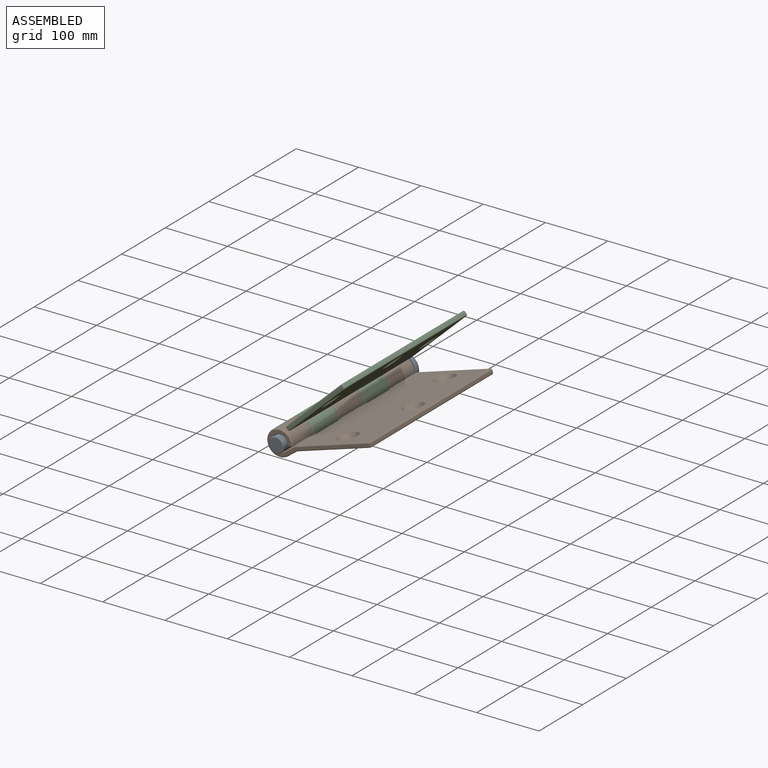
[diagram: assembled view]
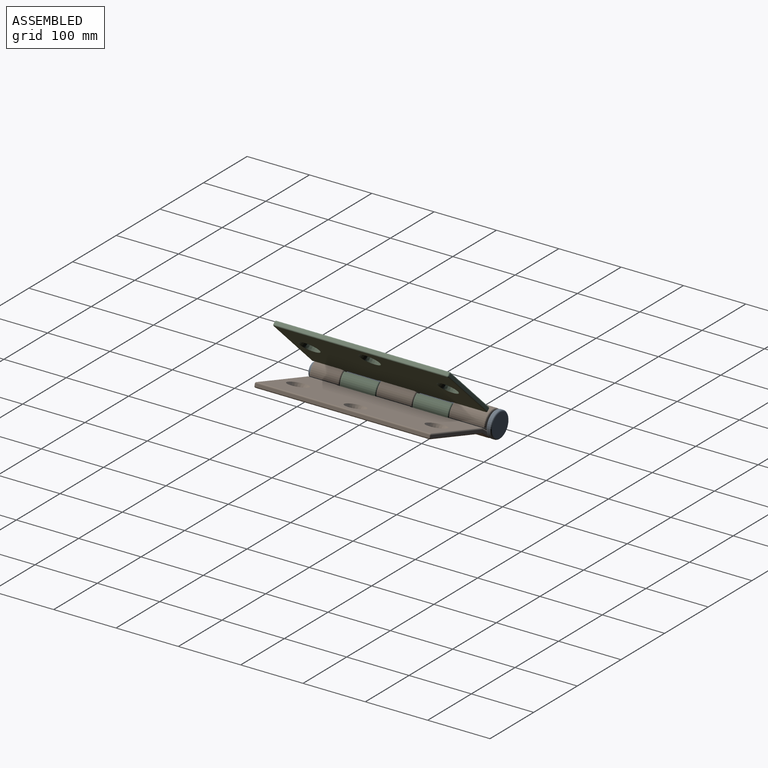
[diagram: assembled view, second angle]
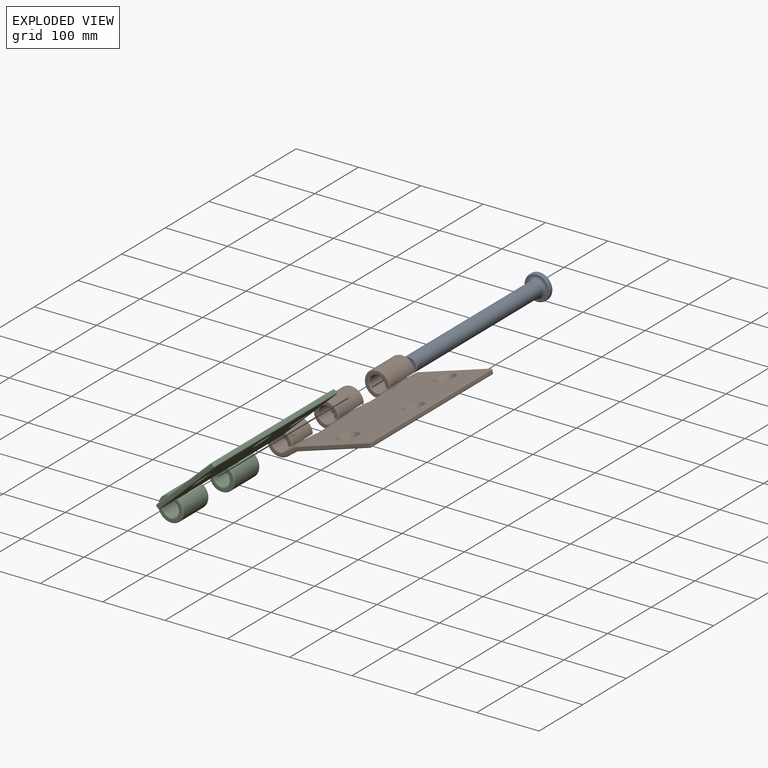
[diagram: exploded view]
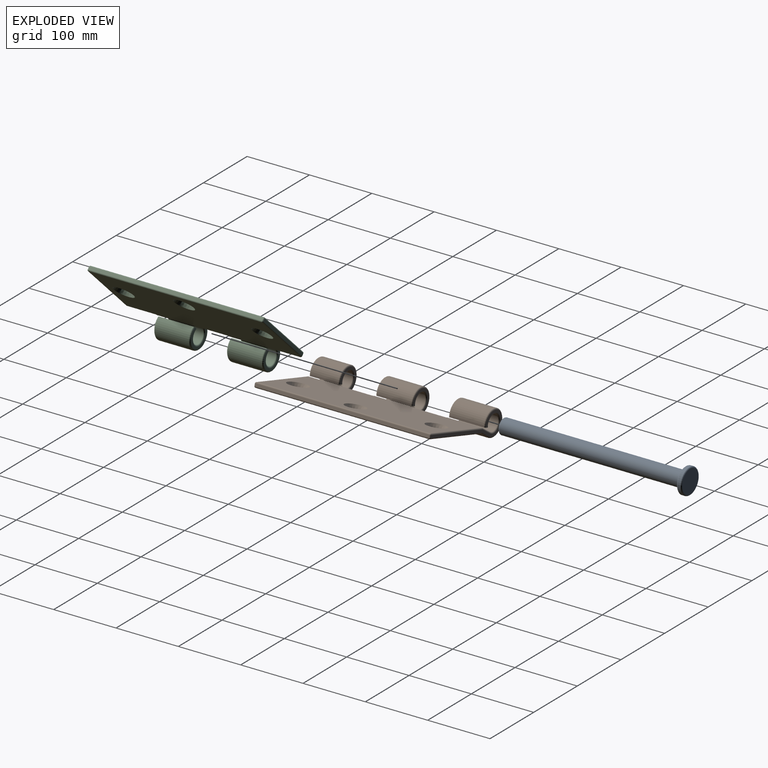
[diagram: exploded view, second angle]
ASSEMBLY  parts=3 mates=2
PART A: 9 faces, bbox 44.4x300x44.4 mm
  f0: cylinder r=12.25mm len=285mm, axis (0,1,0), area 21936.2mm2, adj f7,f8
  f1: plane 20.5x20.5mm, normal (0,-1,0), area 330.1mm2, adj f7
  f2: cylinder r=20.5mm len=41mm, axis (0,-1,0), area 515.2mm2, adj f5,f6
  f3: plane 37x37mm, normal (0,1,0), area 1075.2mm2, adj f6
  f4: plane 37x37mm, normal (0,-1,0), area 140.4mm2, adj f5,f8
  f5: torus R=18.5mm, axis (0,1,0), area 390.3mm2, adj f2,f4
  f6: torus R=18.5mm, axis (0,1,0), area 390.3mm2, adj f2,f3
  f7: torus R=10.25mm, axis (0,1,0), area 227.5mm2, adj f0,f1
  f8: torus R=17.25mm, axis (0,1,0), area 694.2mm2, adj f0,f4
PART B: 86 faces, bbox 172x282.3x44.6 mm
  f0: plane 56.21x20.54mm, normal (-0.32,0,0.95), area 1179.8mm2, adj f4,f12,f39,f40,f41,f52,f53,f54
  f1: plane 45.3x20.54mm, normal (-0.32,0,0.95), area 962.4mm2, adj f5,f12,f34,f35,f36,f70
  f2: plane 54.85x17.59mm, normal (0.34,0,-0.94), area 1016.5mm2, adj f6,f14,f49,f50,f61,f62
  f3: plane 44.63x17.59mm, normal (0.34,0,-0.94), area 829.6mm2, adj f7,f14,f43,f44,f84
  f4: cylinder r=12.5mm len=54.4mm, axis (0,1,0), area 3703.3mm2, adj f0,f8,f37,f51
  f5: cylinder r=12.5mm len=44.4mm, axis (0,1,0), area 3022.6mm2, adj f1,f9,f33,f69
  f6: cylinder r=20.5mm len=54.4mm, axis (0,1,0), area 5913.6mm2, adj f2,f8,f47,f60
  f7: cylinder r=20.5mm len=44.4mm, axis (0,1,0), area 4826.5mm2, adj f3,f9,f42,f82
  f8: plane 58.67x8.7mm, normal (0,0,-1), area 488.4mm2, adj f4,f6,f25,f27,f37,f47,f51,f60
  f9: plane 48.67x8.7mm, normal (0,0,-1), area 404.1mm2, adj f5,f7,f18,f24,f33,f42,f69,f82
  f10: cylinder r=12.5mm len=54.4mm, axis (0,1,0), area 3703.3mm2, adj f11,f17,f55,f71
  f11: plane 55.3x20.54mm, normal (-0.32,0,0.95), area 1179mm2, adj f10,f12,f57,f58,f59,f73
  f12: plane 278x123mm, normal (0,0,1), area 31544mm2, adj f0,f1,f11,f20,f21,f22,f36,f38
  f13: plane 280x4mm, normal (1,0,0), area 1120mm2, adj f18,f74,f79,f83
  f14: plane 278x123.06mm, normal (0,0,-1), area 32599.6mm2, adj f2,f3,f15,f20,f21,f22,f44,f45
  f15: plane 54.63x17.59mm, normal (0.34,0,-0.94), area 1016.4mm2, adj f14,f16,f67,f68,f78
  f16: cylinder r=20.5mm len=54.4mm, axis (0,1,0), area 5913.6mm2, adj f15,f17,f65,f76
  f17: plane 58.67x8.7mm, normal (0,0,-1), area 488.4mm2, adj f10,f16,f19,f28,f55,f65,f71,f76
  f18: plane 168x37mm, normal (0,-1,0), area 929.7mm2, adj f9,f13,f69,f70,f72,f82,f84,f85
  f19: plane 166x37mm, normal (0,1,0), area 921.7mm2, adj f17,f71,f73,f75,f76,f78,f79,f80
  f20: cone r=12mm half-angle=26.6deg, axis (0,0,1), area 786.8mm2, adj f12,f14
  f21: cone r=12mm half-angle=26.6deg, axis (0,0,1), area 786.8mm2, adj f12,f14
  f22: cone r=12mm half-angle=26.6deg, axis (0,0,1), area 786.8mm2, adj f12,f14
  f23: plane 54.4x4mm, normal (-1,0,0), area 217.6mm2, adj f31,f32,f38,f46
  f24: plane 41x37mm, normal (0,1,0), area 422.2mm2, adj f9,f31,f33,f34,f42,f43
  f25: plane 41x37mm, normal (0,-1,0), area 422.2mm2, adj f8,f32,f37,f39,f47,f49
  f26: plane 54.4x4mm, normal (-1,0,0), area 217.6mm2, adj f29,f30,f56,f64
  f27: plane 41x37mm, normal (0,1,0), area 422.2mm2, adj f8,f29,f51,f52,f60,f61
  f28: plane 41x37mm, normal (0,-1,0), area 422.2mm2, adj f17,f30,f55,f57,f65,f67
  f29: cylinder r=2mm len=4.59mm, axis (0,0,1), area 12.3mm2, adj f26,f27,f53,f54,f62,f63
  f30: cylinder r=2mm len=4.59mm, axis (0,0,-1), area 12.3mm2, adj f26,f28,f58,f59,f66,f68
  f31: cylinder r=2mm len=4.59mm, axis (0,0,1), area 12.3mm2, adj f23,f24,f35,f36,f44,f45
  f32: cylinder r=2mm len=4.59mm, axis (0,0,-1), area 12.3mm2, adj f23,f25,f40,f41,f48,f50
  f33: torus R=14.5mm, axis (0,1,0), area 225mm2, adj f5,f9,f24,f34
  f34: cylinder r=2mm len=18.54mm, axis (-0.95,0,-0.32), area 59.3mm2, adj f1,f24,f33,f35
  f35: bspline ~2.75x2.54mm, area 6mm2, adj f1,f31,f34,f36
  f36: torus R=4mm, axis (0,0,-1), area 8.7mm2, adj f1,f12,f31,f35,f38
  f37: torus R=14.5mm, axis (0,1,0), area 225mm2, adj f4,f8,f25,f39
  f38: cylinder r=2mm len=54.4mm, axis (0,1,0), area 170.9mm2, adj f12,f23,f36,f40
  f39: cylinder r=2mm len=18.54mm, axis (0.95,0,0.32), area 59.3mm2, adj f0,f25,f37,f41
  f40: torus R=4mm, axis (0,0,-1), area 8.7mm2, adj f0,f12,f32,f38,f41
  f41: bspline ~3.65x3.11mm, area 6mm2, adj f0,f32,f39,f40
  f42: torus R=18.5mm, axis (0,1,0), area 330.2mm2, adj f7,f9,f24,f43
  f43: cylinder r=2mm len=16.94mm, axis (0.94,0,0.34), area 54.3mm2, adj f3,f24,f42,f44
  f44: bspline ~2.47x2.33mm, area 3.5mm2, adj f3,f14,f31,f43,f45
  f45: torus R=4mm, axis (0,0,1), area 9.2mm2, adj f14,f31,f44,f46
  f46: cylinder r=2mm len=54.4mm, axis (0,1,0), area 170.9mm2, adj f14,f23,f45,f48
  f47: torus R=18.5mm, axis (0,1,0), area 330.2mm2, adj f6,f8,f25,f49
  f48: torus R=4mm, axis (0,0,1), area 9.2mm2, adj f14,f32,f46,f50
  f49: cylinder r=2mm len=16.94mm, axis (-0.94,0,-0.34), area 54.3mm2, adj f2,f25,f47,f50
  f50: bspline ~2.47x2.33mm, area 3.5mm2, adj f2,f14,f32,f48,f49
  f51: torus R=14.5mm, axis (0,1,0), area 225mm2, adj f4,f8,f27,f52
  f52: cylinder r=2mm len=18.54mm, axis (-0.95,0,-0.32), area 59.3mm2, adj f0,f27,f51,f53
  f53: bspline ~2.75x2.54mm, area 6mm2, adj f0,f29,f52,f54
  f54: torus R=4mm, axis (0,0,-1), area 8.7mm2, adj f0,f12,f29,f53,f56
  f55: torus R=14.5mm, axis (0,1,0), area 225mm2, adj f10,f17,f28,f57
  f56: cylinder r=2mm len=54.4mm, axis (0,1,0), area 170.9mm2, adj f12,f26,f54,f58
  f57: cylinder r=2mm len=18.54mm, axis (0.95,0,0.32), area 59.3mm2, adj f11,f28,f55,f59
  f58: torus R=4mm, axis (0,0,-1), area 8.7mm2, adj f11,f12,f30,f56,f59
  f59: bspline ~3.65x3.11mm, area 6mm2, adj f11,f30,f57,f58
  f60: torus R=18.5mm, axis (0,1,0), area 330.2mm2, adj f6,f8,f27,f61
  f61: cylinder r=2mm len=16.94mm, axis (0.94,0,0.34), area 54.3mm2, adj f2,f27,f60,f62
  f62: bspline ~2.47x2.33mm, area 3.5mm2, adj f2,f14,f29,f61,f63
  f63: torus R=4mm, axis (0,0,1), area 9.2mm2, adj f14,f29,f62,f64
  f64: cylinder r=2mm len=54.4mm, axis (0,1,0), area 170.9mm2, adj f14,f26,f63,f66
  f65: torus R=18.5mm, axis (0,1,0), area 330.2mm2, adj f16,f17,f28,f67
  f66: torus R=4mm, axis (0,0,1), area 9.2mm2, adj f14,f30,f64,f68
  f67: cylinder r=2mm len=16.94mm, axis (-0.94,0,-0.34), area 54.3mm2, adj f15,f28,f65,f68
  f68: bspline ~2.47x2.33mm, area 3.5mm2, adj f14,f15,f30,f66,f67
  f69: torus R=14.5mm, axis (0,-1,0), area 225mm2, adj f5,f9,f18,f70
  f70: cylinder r=2mm len=21.18mm, axis (-0.95,0,-0.32), area 67.5mm2, adj f1,f18,f69,f72
  f71: torus R=14.5mm, axis (0,-1,0), area 225mm2, adj f10,f17,f19,f73
  f72: cylinder r=2mm len=125mm, axis (-1,0,0), area 389mm2, adj f12,f18,f70,f74
  f73: cylinder r=2mm len=21.18mm, axis (0.95,0,0.32), area 67.5mm2, adj f11,f19,f71,f75
  f74: cylinder r=2mm len=280mm, axis (0,1,0), area 876.5mm2, adj f12,f13,f72,f77
  f75: cylinder r=2mm len=123mm, axis (1,0,0), area 385.9mm2, adj f12,f19,f73,f77
  f76: torus R=18.5mm, axis (0,-1,0), area 330.2mm2, adj f16,f17,f19,f78
  f77: sphere r=2mm, area 6.3mm2, adj f74,f75,f79
  f78: cylinder r=2mm len=18.59mm, axis (-0.94,0,-0.34), area 59.2mm2, adj f15,f19,f76,f80
  f79: cylinder r=2mm len=4mm, axis (0,0,-1), area 12.6mm2, adj f13,f19,f77,f81
  f80: cylinder r=2mm len=123.35mm, axis (-1,0,0), area 387mm2, adj f14,f19,f78,f81
  f81: sphere r=2mm, area 4mm2, adj f79,f80,f83
  f82: torus R=18.5mm, axis (0,-1,0), area 330.2mm2, adj f7,f9,f18,f84
  f83: cylinder r=2mm len=280mm, axis (0,1,0), area 876.5mm2, adj f13,f14,f81,f85
  f84: cylinder r=2mm len=18.59mm, axis (0.94,0,0.34), area 59.2mm2, adj f3,f18,f82,f85
  f85: cylinder r=2mm len=125.35mm, axis (1,0,0), area 390.1mm2, adj f14,f18,f83,f84
PART C: 85 faces, bbox 172x282.3x44.6 mm
  f0: plane 56.21x20.54mm, normal (0.32,0,0.95), area 1179.8mm2, adj f4,f12,f60,f62,f64,f81,f82,f84
  f1: plane 56.21x20.54mm, normal (0.32,0,0.95), area 1179.8mm2, adj f5,f12,f28,f30,f33,f69,f73,f76
  f2: plane 54.85x17.59mm, normal (-0.34,0,-0.94), area 1016.5mm2, adj f6,f14,f56,f59,f74,f77
  f3: plane 54.85x17.59mm, normal (-0.34,0,-0.94), area 1016.5mm2, adj f7,f14,f27,f29,f66,f68
  f4: cylinder r=12.5mm len=54.4mm, axis (0,1,0), area 3703.3mm2, adj f0,f8,f63,f83
  f5: cylinder r=12.5mm len=54.4mm, axis (0,1,0), area 3703.3mm2, adj f1,f9,f26,f67
  f6: cylinder r=20.5mm len=54.4mm, axis (0,1,0), area 5913.6mm2, adj f2,f8,f53,f70
  f7: cylinder r=20.5mm len=54.4mm, axis (0,1,0), area 5913.6mm2, adj f3,f9,f25,f65
  f8: plane 58.67x8.7mm, normal (0,0,-1), area 488.4mm2, adj f4,f6,f21,f24,f53,f63,f70,f83
  f9: plane 58.67x8.7mm, normal (0,0,-1), area 488.4mm2, adj f5,f7,f19,f22,f25,f26,f65,f67
  f10: plane 121x4mm, normal (0,-1,0), area 484mm2, adj f36,f39,f40,f41
  f11: plane 121x4mm, normal (0,1,0), area 484mm2, adj f46,f49,f50,f51
  f12: plane 278x123mm, normal (0,0,1), area 31455.2mm2, adj f0,f1,f15,f16,f17,f33,f35,f40
  f13: plane 278x4mm, normal (-1,0,0), area 1112mm2, adj f41,f44,f45,f46
  f14: plane 278x123.06mm, normal (0,0,-1), area 32510.8mm2, adj f2,f3,f15,f16,f17,f29,f32,f34
  f15: cone r=12mm half-angle=26.6deg, axis (0,0,1), area 786.8mm2, adj f12,f14
  f16: cone r=12mm half-angle=26.6deg, axis (0,0,1), area 786.8mm2, adj f12,f14
  f17: cone r=12mm half-angle=26.6deg, axis (0,0,1), area 786.8mm2, adj f12,f14
  f18: plane 44.4x4mm, normal (1,0,0), area 177.6mm2, adj f31,f34,f35,f36
  f19: plane 41x37mm, normal (0,-1,0), area 422.2mm2, adj f9,f25,f26,f27,f28,f31
  f20: plane 54.4x4mm, normal (1,0,0), area 217.6mm2, adj f72,f75,f79,f80
  f21: plane 41x37mm, normal (0,-1,0), area 422.2mm2, adj f8,f70,f74,f80,f83,f84
  f22: plane 41x37mm, normal (0,1,0), area 422.2mm2, adj f9,f65,f66,f67,f69,f72
  f23: plane 54.4x4mm, normal (1,0,0), area 217.6mm2, adj f51,f55,f57,f61
  f24: plane 41x37mm, normal (0,1,0), area 422.2mm2, adj f8,f53,f56,f61,f63,f64
  f25: torus R=18.5mm, axis (0,-1,0), area 330.2mm2, adj f7,f9,f19,f27
  f26: torus R=14.5mm, axis (0,-1,0), area 225mm2, adj f5,f9,f19,f28
  f27: cylinder r=2mm len=16.94mm, axis (-0.94,0,0.34), area 54.3mm2, adj f3,f19,f25,f29
  f28: cylinder r=2mm len=18.54mm, axis (0.95,0,-0.32), area 59.3mm2, adj f1,f19,f26,f30
  f29: bspline ~2.47x2.33mm, area 3.5mm2, adj f3,f14,f27,f31,f32
  f30: bspline ~3.65x3.11mm, area 6mm2, adj f1,f28,f31,f33
  f31: cylinder r=2mm len=4.59mm, axis (0,0,-1), area 12.3mm2, adj f18,f19,f29,f30,f32,f33
  f32: torus R=4mm, axis (0,0,1), area 9.2mm2, adj f14,f29,f31,f34
  f33: torus R=4mm, axis (0,0,-1), area 8.7mm2, adj f1,f12,f30,f31,f35
  f34: cylinder r=2mm len=44.4mm, axis (0,-1,0), area 139.5mm2, adj f14,f18,f32,f37
  f35: cylinder r=2mm len=44.4mm, axis (0,-1,0), area 139.5mm2, adj f12,f18,f33,f38
  f36: cylinder r=2mm len=4mm, axis (0,0,1), area 12.6mm2, adj f10,f18,f37,f38
  f37: sphere r=2mm, area 6.3mm2, adj f34,f36,f39
  f38: sphere r=2mm, area 6.3mm2, adj f35,f36,f40
  f39: cylinder r=2mm len=121mm, axis (-1,0,0), area 380.1mm2, adj f10,f14,f37,f42
  f40: cylinder r=2mm len=121mm, axis (1,0,0), area 380.1mm2, adj f10,f12,f38,f43
  f41: cylinder r=2mm len=4mm, axis (0,0,1), area 12.6mm2, adj f10,f13,f42,f43
  f42: sphere r=2mm, area 6.3mm2, adj f39,f41,f44
  f43: sphere r=2mm, area 6.3mm2, adj f40,f41,f45
  f44: cylinder r=2mm len=278mm, axis (0,1,0), area 873.4mm2, adj f13,f14,f42,f47
  f45: cylinder r=2mm len=278mm, axis (0,1,0), area 873.4mm2, adj f12,f13,f43,f48
  f46: cylinder r=2mm len=4mm, axis (0,0,-1), area 12.6mm2, adj f11,f13,f47,f48
  f47: sphere r=2mm, area 6.3mm2, adj f44,f46,f49
  f48: sphere r=2mm, area 6.3mm2, adj f45,f46,f50
  f49: cylinder r=2mm len=121mm, axis (1,0,0), area 380.1mm2, adj f11,f14,f47,f52
  f50: cylinder r=2mm len=121mm, axis (-1,0,0), area 380.1mm2, adj f11,f12,f48,f54
  f51: cylinder r=2mm len=4mm, axis (0,0,-1), area 12.6mm2, adj f11,f23,f52,f54
  f52: sphere r=2mm, area 4mm2, adj f49,f51,f55
  f53: torus R=18.5mm, axis (0,-1,0), area 330.2mm2, adj f6,f8,f24,f56
  f54: sphere r=2mm, area 6.3mm2, adj f50,f51,f57
  f55: cylinder r=2mm len=54.4mm, axis (0,-1,0), area 170.9mm2, adj f14,f23,f52,f58
  f56: cylinder r=2mm len=16.94mm, axis (0.94,0,-0.34), area 54.3mm2, adj f2,f24,f53,f59
  f57: cylinder r=2mm len=54.4mm, axis (0,1,0), area 170.9mm2, adj f12,f23,f54,f60
  f58: torus R=4mm, axis (0,0,1), area 9.2mm2, adj f14,f55,f59,f61
  f59: bspline ~2.47x2.33mm, area 3.5mm2, adj f2,f14,f56,f58,f61
  f60: torus R=4mm, axis (0,0,-1), area 8.7mm2, adj f0,f12,f57,f61,f62
  f61: cylinder r=2mm len=4.59mm, axis (0,0,1), area 12.3mm2, adj f23,f24,f58,f59,f60,f62
  f62: bspline ~3.65x3.11mm, area 6mm2, adj f0,f60,f61,f64
  f63: torus R=14.5mm, axis (0,-1,0), area 225mm2, adj f4,f8,f24,f64
  f64: cylinder r=2mm len=18.54mm, axis (-0.95,0,0.32), area 59.3mm2, adj f0,f24,f62,f63
  f65: torus R=18.5mm, axis (0,-1,0), area 330.2mm2, adj f7,f9,f22,f66
  f66: cylinder r=2mm len=16.94mm, axis (0.94,0,-0.34), area 54.3mm2, adj f3,f22,f65,f68
  f67: torus R=14.5mm, axis (0,-1,0), area 225mm2, adj f5,f9,f22,f69
  f68: bspline ~2.47x2.33mm, area 3.5mm2, adj f3,f14,f66,f71,f72
  f69: cylinder r=2mm len=18.54mm, axis (-0.95,0,0.32), area 59.3mm2, adj f1,f22,f67,f73
  f70: torus R=18.5mm, axis (0,-1,0), area 330.2mm2, adj f6,f8,f21,f74
  f71: torus R=4mm, axis (0,0,1), area 9.2mm2, adj f14,f68,f72,f75
  f72: cylinder r=2mm len=4.59mm, axis (0,0,1), area 12.3mm2, adj f20,f22,f68,f71,f73,f76
  f73: bspline ~2.75x2.54mm, area 6mm2, adj f1,f69,f72,f76
  f74: cylinder r=2mm len=16.94mm, axis (-0.94,0,0.34), area 54.3mm2, adj f2,f21,f70,f77
  f75: cylinder r=2mm len=54.4mm, axis (0,-1,0), area 170.9mm2, adj f14,f20,f71,f78
  f76: torus R=4mm, axis (0,0,-1), area 8.7mm2, adj f1,f12,f72,f73,f79
  f77: bspline ~2.47x2.33mm, area 3.5mm2, adj f2,f14,f74,f78,f80
  f78: torus R=4mm, axis (0,0,1), area 9.2mm2, adj f14,f75,f77,f80
  f79: cylinder r=2mm len=54.4mm, axis (0,-1,0), area 170.9mm2, adj f12,f20,f76,f81
  f80: cylinder r=2mm len=4.59mm, axis (0,0,-1), area 12.3mm2, adj f20,f21,f77,f78,f81,f82
  f81: torus R=4mm, axis (0,0,-1), area 8.7mm2, adj f0,f12,f79,f80,f82
  f82: bspline ~3.65x3.11mm, area 6mm2, adj f0,f80,f81,f84
  f83: torus R=14.5mm, axis (0,-1,0), area 225mm2, adj f4,f8,f21,f84
  f84: cylinder r=2mm len=18.54mm, axis (0.95,0,-0.32), area 59.3mm2, adj f0,f21,f82,f83
PLACE A t=(-85.09,75.66,-52.04)mm fixed
PLACE B rot(axis=(0,-1,0),17.3deg) t=(-82.49,73.66,-59.11)mm
PLACE C rot(axis=(0,1,0),136.5deg) t=(-46.26,73.66,-26.55)mm
MATE revolute C.f4 <-> B.f4  axis (0,1,0) through (-60.59,15.26,-47.04)mm
MATE revolute A.f0 <-> B.f4  axis (0,1,0) through (-60.59,-214.34,-47.04)mm
